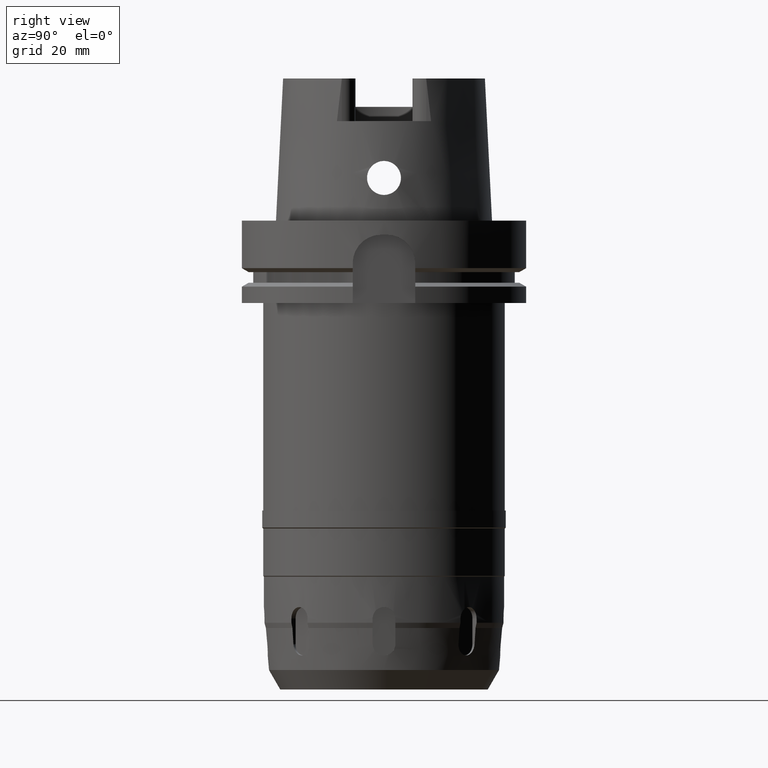
[diagram: clean part render]
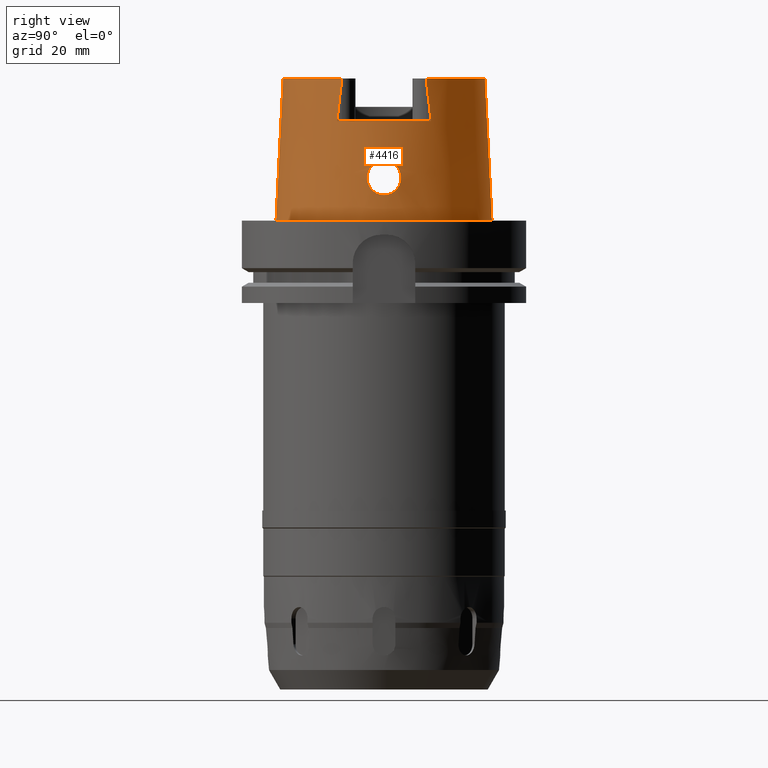
[diagram: same view with one face highlighted and labeled with its STEP entity id]
A machine part, right view. The second image highlights one B-rep face of the part: STEP entity #4416.
In plain terms, the highlighted conical surface has half-angle 2.862 deg.
Its self-contained STEP definition (entity closure, byte-faithful):
#34=CARTESIAN_POINT('',(0.E0,0.E0,5.E1));
#35=DIRECTION('',(0.E0,0.E0,-1.E0));
#36=DIRECTION('',(0.E0,1.E0,0.E0));
#37=AXIS2_PLACEMENT_3D('',#34,#35,#36);
#207=CARTESIAN_POINT('',(0.E0,0.E0,5.E1));
#208=DIRECTION('',(0.E0,0.E0,-1.E0));
#209=DIRECTION('',(9.084449337998E-1,-4.180045481254E-1,0.E0));
#210=AXIS2_PLACEMENT_3D('',#207,#208,#209);
#255=DIRECTION('',(0.E0,-4.993926899643E-2,-9.987522562738E-1));
#256=VECTOR('',#255,5.006246512678E1);
#257=CARTESIAN_POINT('',(0.E0,-3.549993366993E1,5.E1));
#258=LINE('',#257,#256);
#318=CARTESIAN_POINT('',(3.224999342401E1,1.655288360938E1,3.5E1));
#319=CARTESIAN_POINT('',(3.224999342401E1,1.637409751628E1,3.663273506651E1));
#320=CARTESIAN_POINT('',(3.225000122967E1,1.601327464619E1,3.988896366244E1));
#321=CARTESIAN_POINT('',(3.225000556013E1,1.545866740468E1,4.474559439190E1));
#322=CARTESIAN_POINT('',(3.224998620659E1,1.508156476687E1,4.796425157116E1));
#323=CARTESIAN_POINT('',(3.224998620659E1,1.489002945722E1,4.956997532493E1));
#328=CARTESIAN_POINT('',(3.224998620659E1,1.489002945722E1,4.956997532493E1));
#329=CARTESIAN_POINT('',(3.224998620659E1,1.487290884569E1,4.971350485304E1));
#330=CARTESIAN_POINT('',(3.224990994430E1,1.485592689490E1,4.985643189832E1));
#331=CARTESIAN_POINT('',(3.224973489268E1,1.483913373217E1,5.E1));
#336=DIRECTION('',(0.E0,4.993926899643E-2,-9.987522562738E-1));
#337=VECTOR('',#336,5.006246512678E1);
#338=CARTESIAN_POINT('',(0.E0,3.549993366993E1,5.E1));
#339=LINE('',#338,#337);
#343=CARTESIAN_POINT('',(3.224973489268E1,-1.483913373217E1,5.E1));
#344=CARTESIAN_POINT('',(3.224990994430E1,-1.485592689490E1,4.985643189832E1));
#345=CARTESIAN_POINT('',(3.225000391575E1,-1.487287089722E1,4.971270561192E1));
#346=CARTESIAN_POINT('',(3.225000391575E1,-1.488999163769E1,4.956917609920E1));
#351=CARTESIAN_POINT('',(3.225000391575E1,-1.488999163769E1,4.956917609920E1));
#352=CARTESIAN_POINT('',(3.225000391575E1,-1.508135001552E1,4.796494789620E1));
#353=CARTESIAN_POINT('',(3.225000219017E1,-1.545893253911E1,4.474619846518E1));
#354=CARTESIAN_POINT('',(3.224998646077E1,-1.601353821525E1,3.988980237606E1));
#355=CARTESIAN_POINT('',(3.225003013142E1,-1.637389955302E1,3.663304142716E1));
#356=CARTESIAN_POINT('',(3.225003013142E1,-1.655272151074E1,3.5E1));
#361=CARTESIAN_POINT('',(3.694998175923E1,-1.394597051989E-13,2.1E1));
#362=CARTESIAN_POINT('',(3.694998175923E1,-5.232796453323E-1,2.1E1));
#363=CARTESIAN_POINT('',(3.693412451724E1,-1.570862438911E0,2.086225708627E1));
#364=CARTESIAN_POINT('',(3.687089168297E1,-3.037985153551E0,2.025450867787E1));
#365=CARTESIAN_POINT('',(3.679106322387E1,-4.299521288557E0,1.928372311244E1));
#366=CARTESIAN_POINT('',(3.672648493667E1,-5.261385317774E0,1.802476336035E1));
#367=CARTESIAN_POINT('',(3.670709915609E1,-5.863699688574E0,1.656194854670E1));
#368=CARTESIAN_POINT('',(3.675206998905E1,-6.067618691735E0,1.500575400660E1));
#369=CARTESIAN_POINT('',(3.686472239030E1,-5.865813892257E0,1.344400023838E1));
#370=CARTESIAN_POINT('',(3.703183569421E1,-5.262899046342E0,1.197739339874E1));
#371=CARTESIAN_POINT('',(3.722263476829E1,-4.298753028411E0,1.071457849452E1));
#372=CARTESIAN_POINT('',(3.739912179680E1,-3.029437098651E0,9.739991674222E0));
#373=CARTESIAN_POINT('',(3.752122395442E1,-1.560911326651E0,9.135510422167E0));
#374=CARTESIAN_POINT('',(3.755000165825E1,-5.189915305131E-1,9.E0));
#375=CARTESIAN_POINT('',(3.755000165825E1,0.E0,9.E0));
#380=CARTESIAN_POINT('',(3.755000165825E1,0.E0,9.E0));
#381=CARTESIAN_POINT('',(3.755000165825E1,5.185561172954E-1,9.E0));
#382=CARTESIAN_POINT('',(3.752119036260E1,1.556718139938E0,9.135734795112E0));
#383=CARTESIAN_POINT('',(3.740130512596E1,3.006807451071E0,9.729111707228E0));
#384=CARTESIAN_POINT('',(3.722726155607E1,4.270797772277E0,1.068749119600E1));
#385=CARTESIAN_POINT('',(3.703605178505E1,5.245416466194E0,1.194521733172E1));
#386=CARTESIAN_POINT('',(3.686626076396E1,5.862503193271E0,1.342476677231E1));
#387=CARTESIAN_POINT('',(3.675188526532E1,6.068956978002E0,1.500491609795E1));
#388=CARTESIAN_POINT('',(3.670699302399E1,5.861665663787E0,1.657082095588E1));
#389=CARTESIAN_POINT('',(3.672675906349E1,5.257531924815E0,1.802995068512E1));
#390=CARTESIAN_POINT('',(3.679087825075E1,4.302005564500E0,1.928009995261E1));
#391=CARTESIAN_POINT('',(3.687048853140E1,3.045268975278E0,2.025039559183E1));
#392=CARTESIAN_POINT('',(3.693403425518E1,1.575201329615E0,2.086150991349E1));
#393=CARTESIAN_POINT('',(3.694998175923E1,5.250089510025E-1,2.1E1));
#394=CARTESIAN_POINT('',(3.694998175923E1,-1.394597051989E-13,2.1E1));
#429=CARTESIAN_POINT('',(0.E0,0.E0,3.5E1));
#430=DIRECTION('',(0.E0,0.E0,-1.E0));
#431=DIRECTION('',(8.896561898443E-1,4.566309931135E-1,0.E0));
#432=AXIS2_PLACEMENT_3D('',#429,#430,#431);
#3491=CARTESIAN_POINT('',(0.E0,0.E0,1.136868377216E-13));
#3492=DIRECTION('',(0.E0,0.E0,1.E0));
#3493=DIRECTION('',(0.E0,-1.E0,0.E0));
#3494=AXIS2_PLACEMENT_3D('',#3491,#3492,#3493);
#3673=CARTESIAN_POINT('',(0.E0,3.549993366992E1,5.E1));
#3674=VERTEX_POINT('',#3673);
#3675=CARTESIAN_POINT('',(3.224973489267E1,1.483913373218E1,5.E1));
#3676=VERTEX_POINT('',#3675);
#3697=CARTESIAN_POINT('',(3.224973489268E1,-1.483913373218E1,5.E1));
#3698=VERTEX_POINT('',#3697);
#3699=CARTESIAN_POINT('',(0.E0,-3.549993366992E1,5.E1));
#3700=VERTEX_POINT('',#3699);
#3724=CARTESIAN_POINT('',(0.E0,-3.800001658252E1,2.273736754432E-13));
#3725=VERTEX_POINT('',#3724);
#3726=CARTESIAN_POINT('',(0.E0,3.800001658252E1,1.136868377216E-13));
#3727=VERTEX_POINT('',#3726);
#3730=CARTESIAN_POINT('',(3.225E1,1.655285457013E1,3.5E1));
#3731=CARTESIAN_POINT('',(3.225E1,-1.655285457013E1,3.5E1));
#3732=VERTEX_POINT('',#3730);
#3733=VERTEX_POINT('',#3731);
#3734=VERTEX_POINT('',#323);
#3735=VERTEX_POINT('',#346);
#3736=VERTEX_POINT('',#361);
#3737=VERTEX_POINT('',#375);
#4387=CARTESIAN_POINT('',(0.E0,0.E0,2.5E1));
#4388=DIRECTION('',(0.E0,0.E0,-1.E0));
#4389=DIRECTION('',(0.E0,-1.E0,0.E0));
#4390=AXIS2_PLACEMENT_3D('',#4387,#4388,#4389);
#4391=CONICAL_SURFACE('',#4390,3.674997512622E1,2.8625E0);
#4393=ORIENTED_EDGE('',*,*,#4392,.F.);
#4395=ORIENTED_EDGE('',*,*,#4394,.T.);
#4397=ORIENTED_EDGE('',*,*,#4396,.T.);
#4398=ORIENTED_EDGE('',*,*,#4207,.F.);
#4399=ORIENTED_EDGE('',*,*,#4361,.T.);
#4401=ORIENTED_EDGE('',*,*,#4400,.F.);
#4402=ORIENTED_EDGE('',*,*,#4357,.F.);
#4403=ORIENTED_EDGE('',*,*,#4325,.F.);
#4405=ORIENTED_EDGE('',*,*,#4404,.T.);
#4407=ORIENTED_EDGE('',*,*,#4406,.T.);
#4408=EDGE_LOOP('',(#4393,#4395,#4397,#4398,#4399,#4401,#4402,#4403,#4405,
#4407));
#4409=FACE_OUTER_BOUND('',#4408,.F.);
#4411=ORIENTED_EDGE('',*,*,#4410,.T.);
#4413=ORIENTED_EDGE('',*,*,#4412,.T.);
#4414=EDGE_LOOP('',(#4411,#4413));
#4415=FACE_BOUND('',#4414,.F.);
#38=CIRCLE('',#37,3.549993366992E1);
#211=CIRCLE('',#210,3.549993366992E1);
#324=B_SPLINE_CURVE_WITH_KNOTS('',3,(#318,#319,#320,#321,#322,#323),
.UNSPECIFIED.,.F.,.F.,(4,1,1,4),(0.E0,3.333333333333E-1,6.666666666667E-1,1.E0),
.UNSPECIFIED.);
#332=B_SPLINE_CURVE_WITH_KNOTS('',3,(#328,#329,#330,#331),.UNSPECIFIED.,.F.,.F.,
(4,4),(0.E0,1.E0),.UNSPECIFIED.);
#347=B_SPLINE_CURVE_WITH_KNOTS('',3,(#343,#344,#345,#346),.UNSPECIFIED.,.F.,.F.,
(4,4),(0.E0,1.E0),.UNSPECIFIED.);
#357=B_SPLINE_CURVE_WITH_KNOTS('',3,(#351,#352,#353,#354,#355,#356),
.UNSPECIFIED.,.F.,.F.,(4,1,1,4),(0.E0,3.333333333333E-1,6.666666666667E-1,1.E0),
.UNSPECIFIED.);
#376=B_SPLINE_CURVE_WITH_KNOTS('',3,(#361,#362,#363,#364,#365,#366,#367,#368,
#369,#370,#371,#372,#373,#374,#375),.UNSPECIFIED.,.F.,.F.,(4,1,1,1,1,1,1,1,1,1,
1,1,4),(0.E0,8.333333333333E-2,1.666666666667E-1,2.5E-1,3.333333333333E-1,
4.166666666667E-1,5.E-1,5.833333333333E-1,6.666666666667E-1,7.5E-1,
8.333333333333E-1,9.166666666667E-1,1.E0),.UNSPECIFIED.);
#395=B_SPLINE_CURVE_WITH_KNOTS('',3,(#380,#381,#382,#383,#384,#385,#386,#387,
#388,#389,#390,#391,#392,#393,#394),.UNSPECIFIED.,.F.,.F.,(4,1,1,1,1,1,1,1,1,1,
1,1,4),(0.E0,8.333333333333E-2,1.666666666667E-1,2.5E-1,3.333333333333E-1,
4.166666666667E-1,5.E-1,5.833333333333E-1,6.666666666667E-1,7.5E-1,
8.333333333333E-1,9.166666666667E-1,1.E0),.UNSPECIFIED.);
#433=CIRCLE('',#432,3.624995854370E1);
#3495=CIRCLE('',#3494,3.800001658252E1);
#4207=EDGE_CURVE('',#3674,#3676,#38,.T.);
#4325=EDGE_CURVE('',#3698,#3700,#211,.T.);
#4357=EDGE_CURVE('',#3700,#3725,#258,.T.);
#4361=EDGE_CURVE('',#3674,#3727,#339,.T.);
#4392=EDGE_CURVE('',#3732,#3733,#433,.T.);
#4394=EDGE_CURVE('',#3732,#3734,#324,.T.);
#4396=EDGE_CURVE('',#3734,#3676,#332,.T.);
#4400=EDGE_CURVE('',#3725,#3727,#3495,.T.);
#4404=EDGE_CURVE('',#3698,#3735,#347,.T.);
#4406=EDGE_CURVE('',#3735,#3733,#357,.T.);
#4410=EDGE_CURVE('',#3736,#3737,#376,.T.);
#4412=EDGE_CURVE('',#3737,#3736,#395,.T.);
#4416=ADVANCED_FACE('',(#4409,#4415),#4391,.T.);